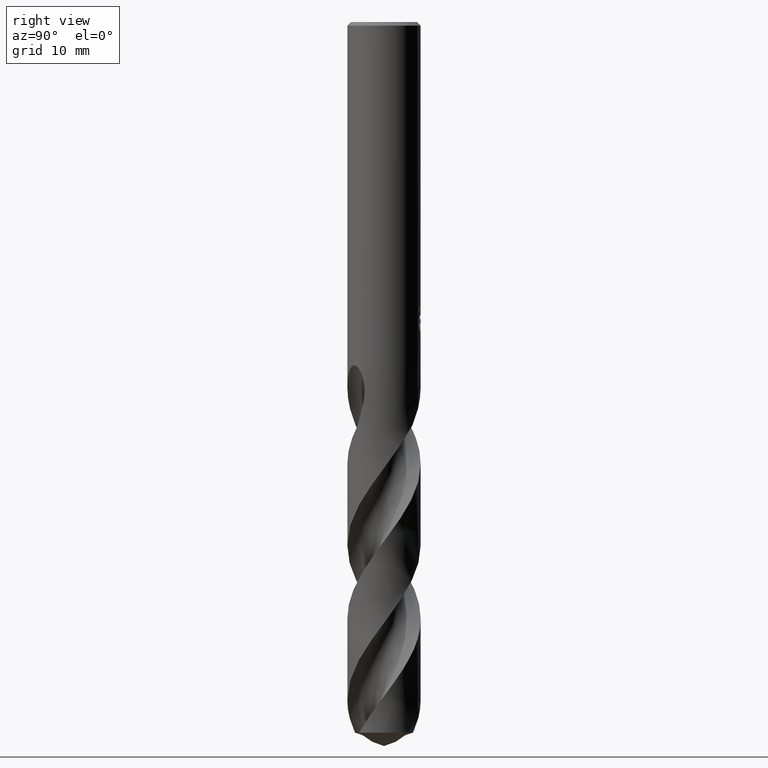
[diagram: clean part render]
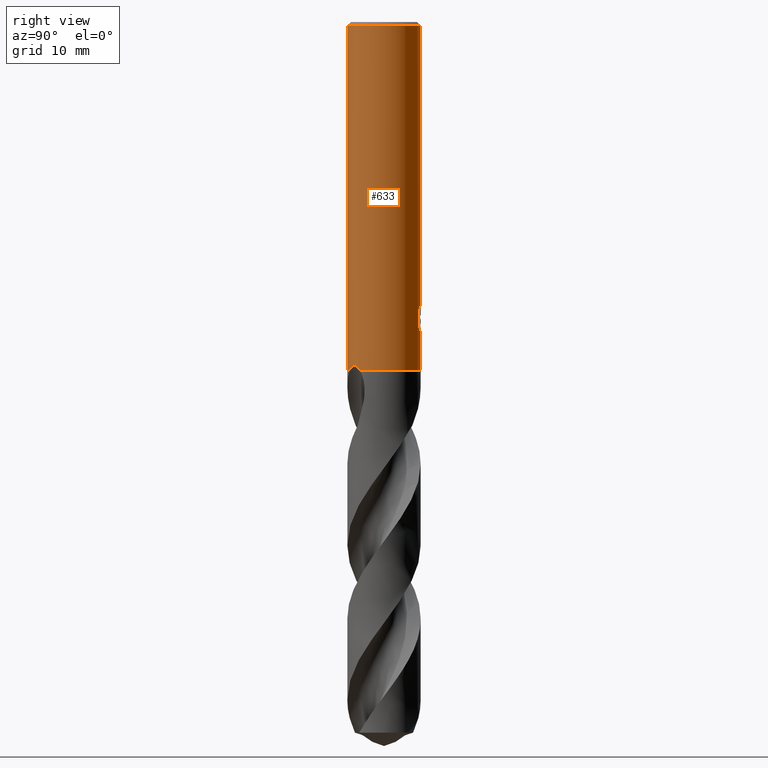
[diagram: same view with one face highlighted and labeled with its STEP entity id]
A machine part, right view. The second image highlights one B-rep face of the part: STEP entity #633.
In plain terms, the highlighted cylindrical surface (partial cylindrical patch) has radius 4 mm, axis along (-0, -0, 1).
Its self-contained STEP definition (entity closure, byte-faithful):
#257=VERTEX_POINT('',#716);
#271=EDGE_CURVE('',#415,#481,#731,.T.);
#317=VERTEX_POINT('',#781);
#319=EDGE_CURVE('',#523,#257,#783,.T.);
#345=EDGE_CURVE('',#625,#415,#810,.T.);
#353=VERTEX_POINT('',#818);
#393=VERTEX_POINT('',#861);
#401=EDGE_CURVE('',#431,#625,#870,.T.);
#413=EDGE_CURVE('',#559,#607,#883,.T.);
#415=VERTEX_POINT('',#885);
#431=VERTEX_POINT('',#903);
#441=EDGE_CURVE('',#623,#647,#913,.T.);
#481=VERTEX_POINT('',#959);
#497=EDGE_CURVE('',#393,#647,#977,.T.);
#515=EDGE_CURVE('',#317,#353,#997,.T.);
#521=EDGE_CURVE('',#571,#607,#1004,.T.);
#523=VERTEX_POINT('',#1006);
#525=EDGE_CURVE('',#431,#571,#1008,.T.);
#533=EDGE_CURVE('',#481,#317,#1017,.T.);
#551=EDGE_CURVE('',#559,#523,#1038,.T.);
#559=VERTEX_POINT('',#1046);
#571=VERTEX_POINT('',#1058);
#607=VERTEX_POINT('',#1098);
#623=VERTEX_POINT('',#1114);
#625=VERTEX_POINT('',#1116);
#629=EDGE_CURVE('',#623,#257,#1121,.T.);
#633=ADVANCED_FACE('',(#1125),#1126,.T.);
#647=VERTEX_POINT('',#1141);
#651=EDGE_CURVE('',#353,#393,#1145,.T.);
#716=CARTESIAN_POINT('',(4.89842541528951E-016,-4.0,-0.399999999999999));
#731=LINE('',#1230,#1231);
#781=CARTESIAN_POINT('',(1.33721006514658,3.76986329217263,-33.2901657003257));
#783=LINE('',#1461,#1462);
#810=ELLIPSE('',#1601,12.1919782934791,4.0);
#818=CARTESIAN_POINT('',(1.33721006514658,3.76986329217263,-31.5150484364821));
#861=CARTESIAN_POINT('',(0.799431726384364,3.91929954390451,-31.000000276873));
#870=B_SPLINE_CURVE_WITH_KNOTS('',3,(#1866,#1867,#1868,#1869,#1870,#1871,#1872,#1873,#1874,#1875,#1876,#1877,#1878,#1879,#1880,#1881),.UNSPECIFIED.,.F.,.F.,(4,2,2,2,2,2,2,4),(5.59330412183837,6.21519943861119,6.52611580040833,6.83703216220547,7.14794852400261,7.45886488579976,7.76904377517712,8.07922266455448),.UNSPECIFIED.);
#883=B_SPLINE_CURVE_WITH_KNOTS('',3,(#1921,#1922,#1923,#1924,#1925,#1926,#1927,#1928,#1929,#1930,#1931,#1932),.UNSPECIFIED.,.F.,.F.,(4,2,2,2,2,4),(0.0,0.75650991242746,1.21579775110314,1.59314384378832,1.97510931117291,2.38467101162333),.UNSPECIFIED.);
#885=CARTESIAN_POINT('',(0.873560781758957,3.90344611344549,-32.3198931596091));
#903=CARTESIAN_POINT('',(-6.37761657961682E-016,4.0,-34.0310253601033));
#913=LINE('',#2024,#2025);
#959=CARTESIAN_POINT('',(0.873560781758956,3.90344611344549,-33.7587351791531));
#977=B_SPLINE_CURVE_WITH_KNOTS('',3,(#3158,#3159,#3160,#3161,#3162,#3163,#3164,#3165,#3166,#3167,#3168,#3169,#3170,#3171,#3172,#3173,#3174,#3175,#3176,#3177,#3178,#3179,#3180,#3181,#3182,#3183,#3184),.UNSPECIFIED.,.F.,.F.,(4,2,3,2,2,2,2,2,2,2,2,2,4),(-0.543018145553855,-0.271509072776928,0.0,0.271509072776927,0.543018145553855,0.815414280910791,1.08781041626773,1.35870467547365,1.62959893467958,1.90093601549038,2.17227309630118,2.44361017711198,2.71494725792278),.UNSPECIFIED.);
#997=LINE('',#3227,#3228);
#1004=CIRCLE('',#3312,4.0);
#1006=CARTESIAN_POINT('',(4.89842541528951E-016,-4.0,-38.0));
#1008=LINE('',#3317,#3318);
#1017=B_SPLINE_CURVE_WITH_KNOTS('',3,(#3340,#3341,#3342,#3343,#3344,#3345,#3346,#3347,#3348,#3349),.UNSPECIFIED.,.F.,.F.,(4,2,2,2,4),(8.07922159159579,8.38940045176896,8.69957931194214,9.01038857642139,9.32119784090064),.UNSPECIFIED.);
#1038=CIRCLE('',#3695,4.0);
#1046=CARTESIAN_POINT('',(1.36364864754241,-3.76038061451973,-38.0));
#1058=CARTESIAN_POINT('',(-4.89842541528951E-016,4.0,-38.0));
#1098=CARTESIAN_POINT('',(3.03043874900922,-2.61083147455047,-38.0));
#1114=CARTESIAN_POINT('',(0.0,4.0,-0.399999999999999));
#1116=CARTESIAN_POINT('',(0.29010312703583,3.98946615171554,-33.9998328990228));
#1121=CIRCLE('',#4071,4.0);
#1125=FACE_OUTER_BOUND('',#4159,.T.);
#1126=CYLINDRICAL_SURFACE('',#4160,4.0);
#1141=CARTESIAN_POINT('',(0.0,4.0,-32.0232688117743));
#1145=B_SPLINE_CURVE_WITH_KNOTS('',3,(#4378,#4379,#4380,#4381,#4382,#4383,#4384,#4385,#4386,#4387),.UNSPECIFIED.,.F.,.F.,(4,2,2,2,4),(0.621618550720989,0.932427826081483,1.24323710144198,1.55341597198189,1.8635948425218),.UNSPECIFIED.);
#1230=CARTESIAN_POINT('',(0.873560781758957,3.90344611344549,-33.0393141693811));
#1231=VECTOR('',#5151,1.0);
#1461=CARTESIAN_POINT('',(4.89842541528951E-016,-4.0,-37.0));
#1462=VECTOR('',#5193,1.0);
#1601=AXIS2_PLACEMENT_3D('',#5217,#5218,#5219);
#1866=CARTESIAN_POINT('',(-1.53169074080201,3.69512157777541,-33.0291469804961));
#1867=CARTESIAN_POINT('',(-1.44828662161398,3.72969396308271,-33.2292685117474));
#1868=CARTESIAN_POINT('',(-1.3235119204923,3.77766697431007,-33.4106519059977));
#1869=CARTESIAN_POINT('',(-1.10876972720289,3.84398770228913,-33.6255223555534));
#1870=CARTESIAN_POINT('',(-1.02784628500841,3.86675406900514,-33.6929304922165));
#1871=CARTESIAN_POINT('',(-0.851215741256186,3.9094356085587,-33.8121513963803));
#1872=CARTESIAN_POINT('',(-0.755506440008018,3.92931563110609,-33.8639734861066));
#1873=CARTESIAN_POINT('',(-0.55516132520436,3.96258844897707,-33.9475385932463));
#1874=CARTESIAN_POINT('',(-0.450345578096092,3.97598591776774,-33.9793474763458));
#1875=CARTESIAN_POINT('',(-0.238765831475676,3.99427916347003,-34.0212208804589));
#1876=CARTESIAN_POINT('',(-0.131998351317953,3.99916459194608,-34.0312723335086));
#1877=CARTESIAN_POINT('',(0.0750281946656646,4.00063255933723,-34.0312723335086));
#1878=CARTESIAN_POINT('',(0.181611397509719,3.99727906083033,-34.0212676362976));
#1879=CARTESIAN_POINT('',(0.392937729655654,3.98206259750675,-33.9795209106323));
#1880=CARTESIAN_POINT('',(0.497684032548134,3.97021008398904,-33.9477911393989));
#1881=CARTESIAN_POINT('',(0.597825841435798,3.9550732310934,-33.9060826866649));
#1921=CARTESIAN_POINT('',(1.36364864754241,-3.76038061451972,-38.0));
#1922=CARTESIAN_POINT('',(1.53803211788228,-3.69714292454639,-37.8291752534995));
#1923=CARTESIAN_POINT('',(1.7332313604225,-3.61236933305405,-37.669081449096));
#1924=CARTESIAN_POINT('',(2.05795505081282,-3.43285127620597,-37.5073760558736));
#1925=CARTESIAN_POINT('',(2.18355209242297,-3.35490586853563,-37.4680618832215));
#1926=CARTESIAN_POINT('',(2.41060746004576,-3.1944787921288,-37.4586462671471));
#1927=CARTESIAN_POINT('',(2.50696211418953,-3.11914909209717,-37.4777304185583));
#1928=CARTESIAN_POINT('',(2.68773587344647,-2.96485574910876,-37.5626572735304));
#1929=CARTESIAN_POINT('',(2.76761099238614,-2.88967709367295,-37.6269844954505));
#1930=CARTESIAN_POINT('',(2.91295605331752,-2.74336912817674,-37.7906182712461));
#1931=CARTESIAN_POINT('',(2.97649078817322,-2.67344983676231,-37.8915223921263));
#1932=CARTESIAN_POINT('',(3.03043874900923,-2.61083147455047,-38.0));
#2024=CARTESIAN_POINT('',(-4.89842541528951E-016,4.0,-37.0));
#2025=VECTOR('',#5308,1.0);
#3158=CARTESIAN_POINT('',(0.665279195004375,3.9442874632428,-30.8137529884524));
#3159=CARTESIAN_POINT('',(0.72877088492158,3.9335783806135,-30.8773526603125));
#3160=CARTESIAN_POINT('',(0.783944488018489,3.92260552826083,-30.957920893425));
#3161=CARTESIAN_POINT('',(0.857267073993339,3.90723639918054,-31.134802544027));
#3162=CARTESIAN_POINT('',(0.875400981188567,3.90303383563787,-31.2311389883278));
#3163=CARTESIAN_POINT('',(0.875400981188567,3.90303383563787,-31.3216420125868));
#3164=CARTESIAN_POINT('',(0.875400981188567,3.90303383563787,-31.4121450368458));
#3165=CARTESIAN_POINT('',(0.857267073993339,3.90723639918054,-31.5084814811466));
#3166=CARTESIAN_POINT('',(0.783944488018488,3.92260552826083,-31.6853631317485));
#3167=CARTESIAN_POINT('',(0.728770884921581,3.9335783806135,-31.765931364861));
#3168=CARTESIAN_POINT('',(0.601580067811904,3.95503153411898,-31.8933384986505));
#3169=CARTESIAN_POINT('',(0.520902117238449,3.96693827151805,-31.9487071231089));
#3170=CARTESIAN_POINT('',(0.343752086871948,3.98619778335453,-32.0223037477669));
#3171=CARTESIAN_POINT('',(0.247255556938652,3.99338316413851,-32.0405166027747));
#3172=CARTESIAN_POINT('',(0.0662974670001867,4.00046977119903,-32.0405166027747));
#3173=CARTESIAN_POINT('',(-0.0299674229107091,4.00086780861984,-32.0224830783564));
#3174=CARTESIAN_POINT('',(-0.206991592502204,3.99562207288533,-31.9491870835923));
#3175=CARTESIAN_POINT('',(-0.287758268875903,3.99014940483369,-31.8939303320089));
#3176=CARTESIAN_POINT('',(-0.415384305359873,3.97889009382894,-31.7664425414649));
#3177=CARTESIAN_POINT('',(-0.470753835570468,3.9723749730993,-31.6856442592887));
#3178=CARTESIAN_POINT('',(-0.544239101864661,3.96297563900076,-31.5084730190186));
#3179=CARTESIAN_POINT('',(-0.562348199187247,3.96027328638705,-31.4120877061904));
#3180=CARTESIAN_POINT('',(-0.562348199187247,3.96027328638705,-31.2311963189832));
#3181=CARTESIAN_POINT('',(-0.544239101864661,3.96297563900076,-31.134811006155));
#3182=CARTESIAN_POINT('',(-0.470753835570468,3.9723749730993,-30.9576397658849));
#3183=CARTESIAN_POINT('',(-0.415384305359873,3.97889009382894,-30.8768414837086));
#3184=CARTESIAN_POINT('',(-0.351519173230209,3.98452434687649,-30.8130455309993));
#3227=CARTESIAN_POINT('',(1.33721006514658,3.76986329217263,-32.4026070684039));
#3228=VECTOR('',#5425,1.0);
#3312=AXIS2_PLACEMENT_3D('',#5435,#5436,#5437);
#3317=CARTESIAN_POINT('',(-4.89842541528951E-016,4.0,-37.0));
#3318=VECTOR('',#5438,1.0);
#3340=CARTESIAN_POINT('',(0.597825566619951,3.95507327263295,-33.9060822529338));
#3341=CARTESIAN_POINT('',(0.69796736707036,3.93993642812991,-33.8643738039892));
#3342=CARTESIAN_POINT('',(0.793686097648071,3.92151313976681,-33.8126197884223));
#3343=CARTESIAN_POINT('',(0.970367443122637,3.8815705522933,-33.6935130308195));
#3344=CARTESIAN_POINT('',(1.05133192391794,3.86008660197544,-33.6261512051772));
#3345=CARTESIAN_POINT('',(1.19470604884202,3.81814974811935,-33.4828594684698));
#3346=CARTESIAN_POINT('',(1.26216864117972,3.79617175021539,-33.401827240791));
#3347=CARTESIAN_POINT('',(1.38139933735972,3.75442745400946,-33.2250929426288));
#3348=CARTESIAN_POINT('',(1.43317984807825,3.73470372457547,-33.1293891903286));
#3349=CARTESIAN_POINT('',(1.47492142700079,3.7181456109429,-33.0292536952238));
#3695=AXIS2_PLACEMENT_3D('',#5499,#5500,#5501);
#4071=AXIS2_PLACEMENT_3D('',#5582,#5583,#5584);
#4159=EDGE_LOOP('',(#5586,#5587,#5588,#5589,#5590,#5591,#5592,#5593,#5594,#5595,#5596,#5597,#5598,#5599));
#4160=AXIS2_PLACEMENT_3D('',#5600,#5601,#5602);
#4378=CARTESIAN_POINT('',(1.47492143493287,3.71814560779639,-31.7759604553563));
#4379=CARTESIAN_POINT('',(1.43317985453682,3.73470372211652,-31.6758249567768));
#4380=CARTESIAN_POINT('',(1.38139934199221,3.7544274523428,-31.5801212011595));
#4381=CARTESIAN_POINT('',(1.26216864159784,3.79617175011376,-31.4033868968692));
#4382=CARTESIAN_POINT('',(1.1947060468711,3.8181497487877,-31.3223546663791));
#4383=CARTESIAN_POINT('',(1.0513319169546,3.86008660392055,-31.1790629248092));
#4384=CARTESIAN_POINT('',(0.970367433401024,3.88157055479408,-31.1117010969221));
#4385=CARTESIAN_POINT('',(0.793686081906958,3.92151314302242,-30.9925943353462));
#4386=CARTESIAN_POINT('',(0.697967348067752,3.93993643158254,-30.9408403180509));
#4387=CARTESIAN_POINT('',(0.597825544213158,3.95507327601983,-30.8991318677171));
#5151=DIRECTION('',(0.0,0.0,-1.0));
#5193=DIRECTION('',(-0.0,-0.0,1.0));
#5217=CARTESIAN_POINT('',(0.0,0.0,-34.8351219173269));
#5218=DIRECTION('',(0.944648353914092,0.0,-0.328084573619969));
#5219=DIRECTION('',(0.328084573619968,-0.0,0.944648353914092));
#5308=DIRECTION('',(0.0,0.0,-1.0));
#5425=DIRECTION('',(-0.0,-0.0,1.0));
#5435=CARTESIAN_POINT('',(0.0,0.0,-38.0));
#5436=DIRECTION('',(0.0,0.0,-1.0));
#5437=DIRECTION('',(0.0,1.0,0.0));
#5438=DIRECTION('',(0.0,0.0,-1.0));
#5499=CARTESIAN_POINT('',(0.0,0.0,-38.0));
#5500=DIRECTION('',(0.0,0.0,-1.0));
#5501=DIRECTION('',(0.0,1.0,0.0));
#5582=CARTESIAN_POINT('',(0.0,0.0,-0.399999999999999));
#5583=DIRECTION('',(0.0,0.0,-1.0));
#5584=DIRECTION('',(0.0,1.0,0.0));
#5586=ORIENTED_EDGE('',*,*,#441,.F.);
#5587=ORIENTED_EDGE('',*,*,#629,.T.);
#5588=ORIENTED_EDGE('',*,*,#319,.F.);
#5589=ORIENTED_EDGE('',*,*,#551,.F.);
#5590=ORIENTED_EDGE('',*,*,#413,.T.);
#5591=ORIENTED_EDGE('',*,*,#521,.F.);
#5592=ORIENTED_EDGE('',*,*,#525,.F.);
#5593=ORIENTED_EDGE('',*,*,#401,.T.);
#5594=ORIENTED_EDGE('',*,*,#345,.T.);
#5595=ORIENTED_EDGE('',*,*,#271,.T.);
#5596=ORIENTED_EDGE('',*,*,#533,.T.);
#5597=ORIENTED_EDGE('',*,*,#515,.T.);
#5598=ORIENTED_EDGE('',*,*,#651,.T.);
#5599=ORIENTED_EDGE('',*,*,#497,.T.);
#5600=CARTESIAN_POINT('',(0.0,0.0,-37.0));
#5601=DIRECTION('',(-0.0,-0.0,1.0));
#5602=DIRECTION('',(0.0,1.0,0.0));